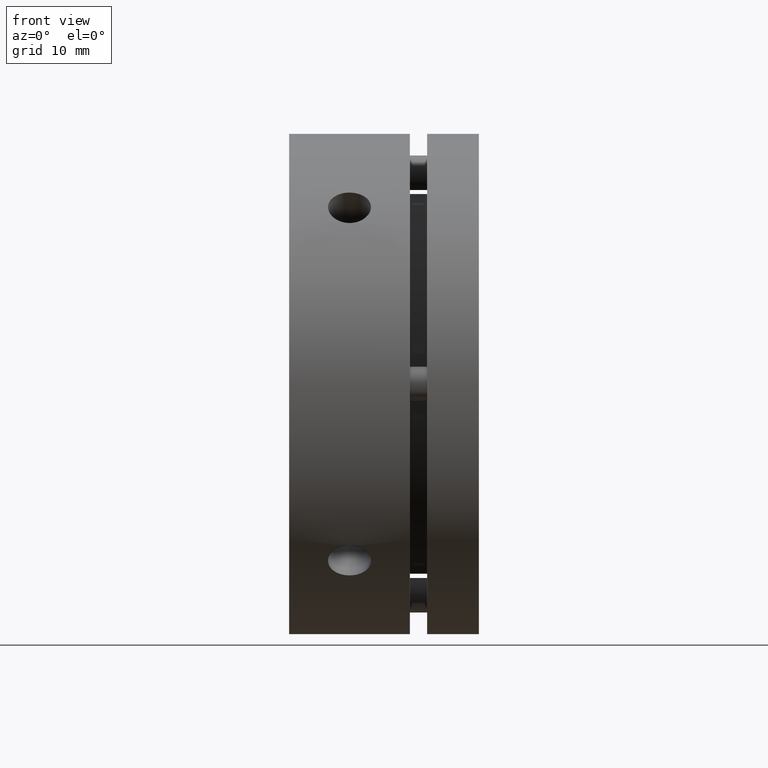
[diagram: clean part render]
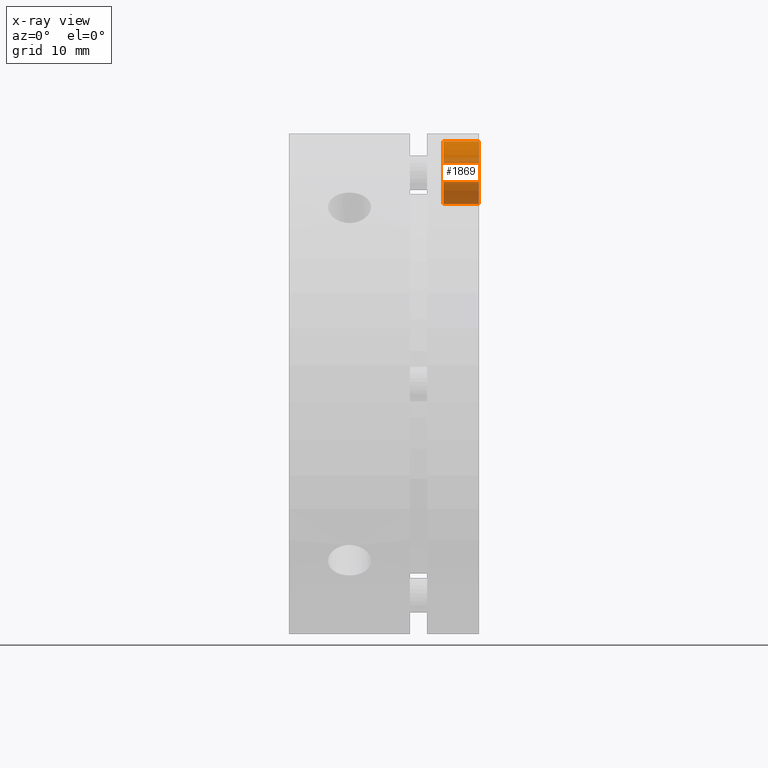
[diagram: x-ray — body ghosted, one internal face saturated and labeled with its STEP entity id]
A machine part, front view, then the same camera in x-ray: the body is ghosted and one INTERNAL B-rep face — a face not visible from any outside direction — is saturated and labeled: STEP entity #1869.
In plain terms, the highlighted cylindrical surface (edge-blend (fillet) strip) has radius 3.65 mm, axis along (1, 0, 0).
Its self-contained STEP definition (entity closure, byte-faithful):
#291 = EDGE_LOOP ( 'NONE', ( #964, #860, #955, #956 ) ) ;
#369 = VERTEX_POINT ( 'NONE', #1978 ) ;
#370 = VERTEX_POINT ( 'NONE', #1979 ) ;
#372 = VERTEX_POINT ( 'NONE', #1981 ) ;
#375 = VERTEX_POINT ( 'NONE', #1984 ) ;
#664 = LINE ( 'NONE', #2389, #667 ) ;
#667 = VECTOR ( 'NONE', #2379, 1000.000000000000000 ) ;
#684 = LINE ( 'NONE', #2419, #689 ) ;
#686 = CIRCLE ( 'NONE', #3164, 3.650000000000000400 ) ;
#689 = VECTOR ( 'NONE', #2426, 1000.000000000000000 ) ;
#702 = CIRCLE ( 'NONE', #3171, 3.650000000000000400 ) ;
#860 = ORIENTED_EDGE ( 'NONE', *, *, #1006, .T. ) ;
#955 = ORIENTED_EDGE ( 'NONE', *, *, #1016, .F. ) ;
#956 = ORIENTED_EDGE ( 'NONE', *, *, #992, .F. ) ;
#964 = ORIENTED_EDGE ( 'NONE', *, *, #1007, .F. ) ;
#992 = EDGE_CURVE ( 'NONE', #372, #370, #664, .T. ) ;
#1006 = EDGE_CURVE ( 'NONE', #375, #369, #684, .T. ) ;
#1007 = EDGE_CURVE ( 'NONE', #375, #372, #686, .T. ) ;
#1016 = EDGE_CURVE ( 'NONE', #370, #369, #702, .T. ) ;
#1100 = AXIS2_PLACEMENT_3D ( 'NONE', #2677, #2675, #2673 ) ;
#1329 = FACE_OUTER_BOUND ( 'NONE', #291, .T. ) ;
#1338 = CYLINDRICAL_SURFACE ( 'NONE', #1100, 3.650000000000000400 ) ;
#1869 = ADVANCED_FACE ( 'NONE', ( #1329 ), #1338, .F. ) ;
#1978 = CARTESIAN_POINT ( 'NONE',  ( 21.99999999999999300, 4.469960816887838400E-016, 28.15000000000001300 ) ) ;
#1979 = CARTESIAN_POINT ( 'NONE',  ( 21.99999999999999300, 0.0000000000000000000, 20.85000000000001200 ) ) ;
#1981 = CARTESIAN_POINT ( 'NONE',  ( 17.89999999999999500, 0.0000000000000000000, 20.85000000000001200 ) ) ;
#1984 = CARTESIAN_POINT ( 'NONE',  ( 17.89999999999999500, 4.469960816887838400E-016, 28.15000000000001300 ) ) ;
#2379 = DIRECTION ( 'NONE',  ( 1.000000000000000000, 0.0000000000000000000, 0.0000000000000000000 ) ) ;
#2389 = CARTESIAN_POINT ( 'NONE',  ( 19.94999999999999200, 0.0000000000000000000, 20.85000000000001200 ) ) ;
#2419 = CARTESIAN_POINT ( 'NONE',  ( 19.94999999999999200, 4.469960816887839400E-016, 28.15000000000001300 ) ) ;
#2426 = DIRECTION ( 'NONE',  ( 1.000000000000000000, 0.0000000000000000000, 0.0000000000000000000 ) ) ;
#2428 = CARTESIAN_POINT ( 'NONE',  ( 17.89999999999999500, 0.0000000000000000000, 24.50000000000001100 ) ) ;
#2429 = DIRECTION ( 'NONE',  ( 1.000000000000000000, 0.0000000000000000000, 0.0000000000000000000 ) ) ;
#2430 = DIRECTION ( 'NONE',  ( 0.0000000000000000000, 0.0000000000000000000, -1.000000000000000000 ) ) ;
#2451 = CARTESIAN_POINT ( 'NONE',  ( 21.99999999999999300, 0.0000000000000000000, 24.50000000000001100 ) ) ;
#2452 = DIRECTION ( 'NONE',  ( -1.000000000000000000, -0.0000000000000000000, -0.0000000000000000000 ) ) ;
#2453 = DIRECTION ( 'NONE',  ( 0.0000000000000000000, 0.0000000000000000000, -1.000000000000000000 ) ) ;
#2673 = DIRECTION ( 'NONE',  ( 0.0000000000000000000, 0.0000000000000000000, -1.000000000000000000 ) ) ;
#2675 = DIRECTION ( 'NONE',  ( 1.000000000000000000, 0.0000000000000000000, 0.0000000000000000000 ) ) ;
#2677 = CARTESIAN_POINT ( 'NONE',  ( 19.94999999999999200, 0.0000000000000000000, 24.50000000000001100 ) ) ;
#3164 = AXIS2_PLACEMENT_3D ( 'NONE', #2428, #2429, #2430 ) ;
#3171 = AXIS2_PLACEMENT_3D ( 'NONE', #2451, #2452, #2453 ) ;